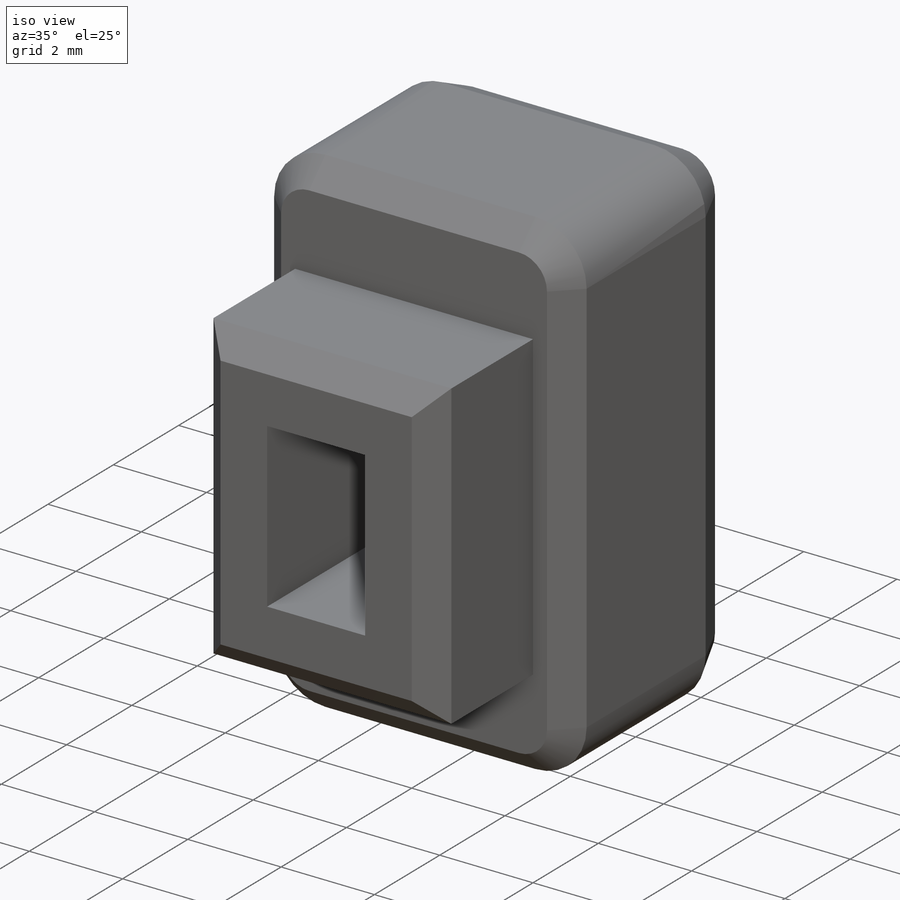
[diagram: iso view]
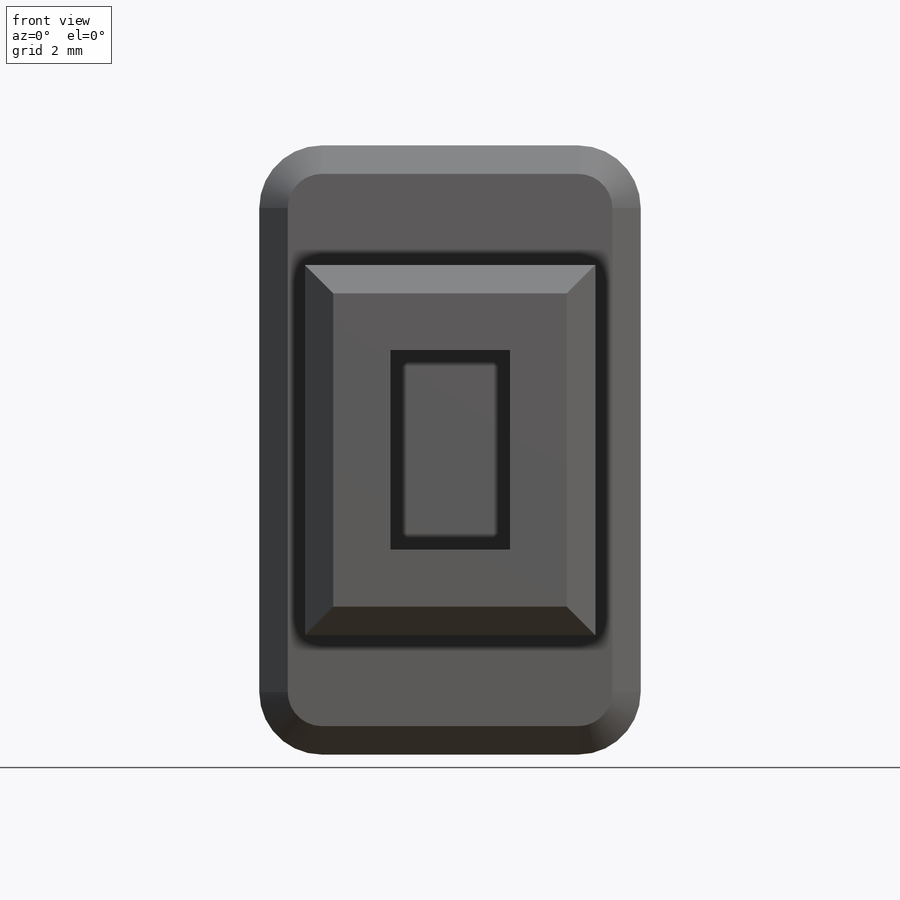
[diagram: front view]
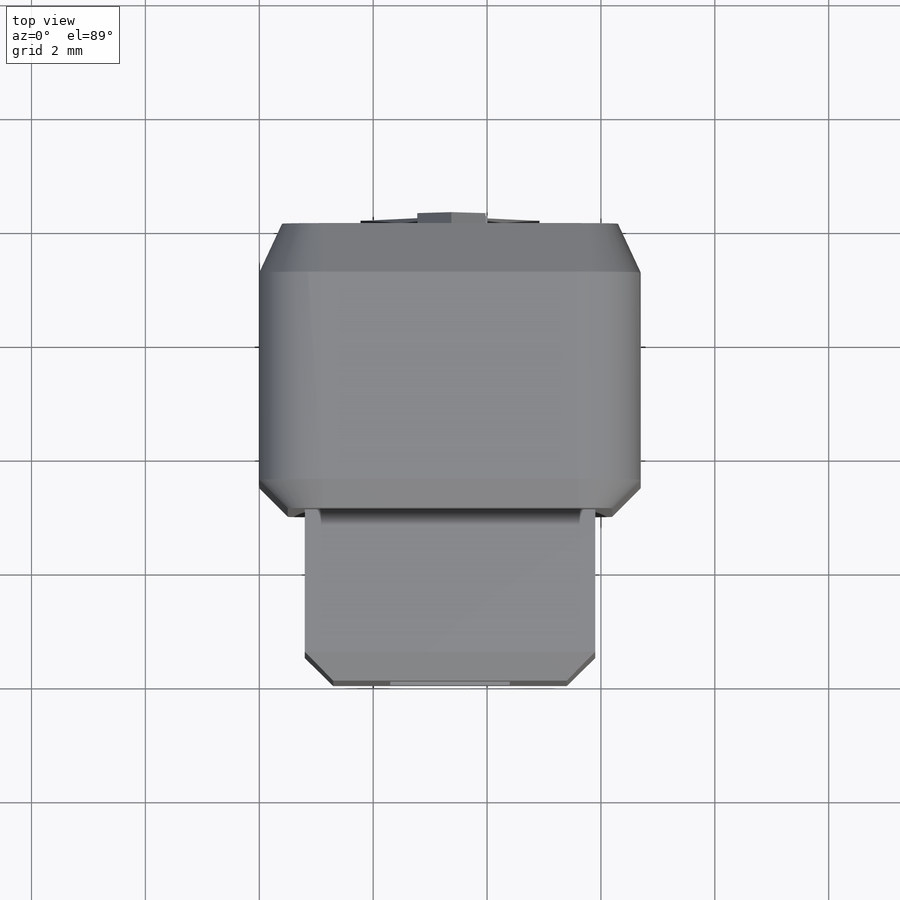
[diagram: top view]
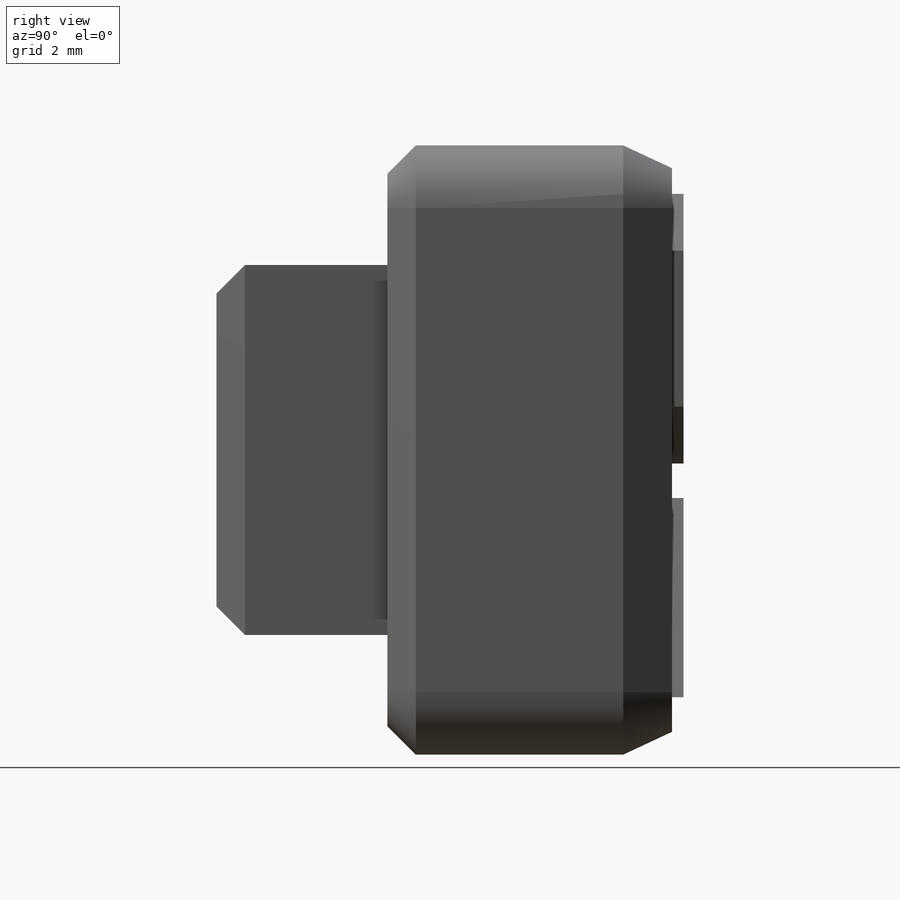
[diagram: right view]
SOLIDWORKS PART (.sldprt)
format: sldprt  version: not decoded by parser v0  size: 309,760 bytes
history: native  units: mm
features: sketch x5, plane x3, cut_extrude x3, extrude x2, chamfer x2, material x1 (+10 scaffold rows collapsed)
feature tree (26):
  scaffold x10  (default folders/planes/origin — collapsed)
  material  "Matériau <non spécifié>"
  plane  "Plan de face"
  plane  "Plan de dessus"
  plane  "Plan de droite"
  sketch  "Esquisse2"  dims[D3=1.1mm D1=6.7mm D2=10.7mm]
  extrude  "Boss.-Extru.1"  Depth=8mm
  sketch  "Esquisse3"  dims[c1.D1=2.1mm c1.D2=6.0mm c1.D3=1.0mm c1.D4=1.0mm c1.D5=3.6mm c1.D6=6.0mm c1.D7=2.1mm c1.D8=1.0mm c1.D9=3.6mm c1.D10=5.5mm c1.D11=1.0mm c2.D2=2.1mm c2.D3=3.5mm c2.D4=2.3mm c2.D6=2.3mm]
  chamfer  "Chanfrein1"  Distance=0.4mm Angle=65deg
  cut_extrude  "Enlèv. mat.-Extru.4"  Depth=3mm
  sketch  "Esquisse4"  dims[D1=1.5mm D2=1.5mm D3=1.5mm D4=1.5mm]
  cut_extrude  "Enlèv. mat.-Extru.5"  Depth=3mm
  chamfer  "Chanfrein2"  Distance=0.5mm Angle=45deg
  sketch  "Esquisse5"  dims[D1=0.4mm D2=0.2mm D3=1.0mm D4=1.0mm D5=1.0mm D6=1.0mm D7=0.4mm D8=0.4mm D9=0.4mm D10=0.43mm]
  extrude  "Boss.-Extru.2"  Depth=0.2mm
  cut_extrude  "Enlèv. mat.-Extru.6"  [1 undecoded]
  sketch  "Esquisse5<2>"  dims[D1=0.2mm]
decode coverage: 11 of 12 modeling features carry decoded parameters
note: 1 parameter value undecoded
note: suppression state not decoded; provenance and decode notes live in map.json
